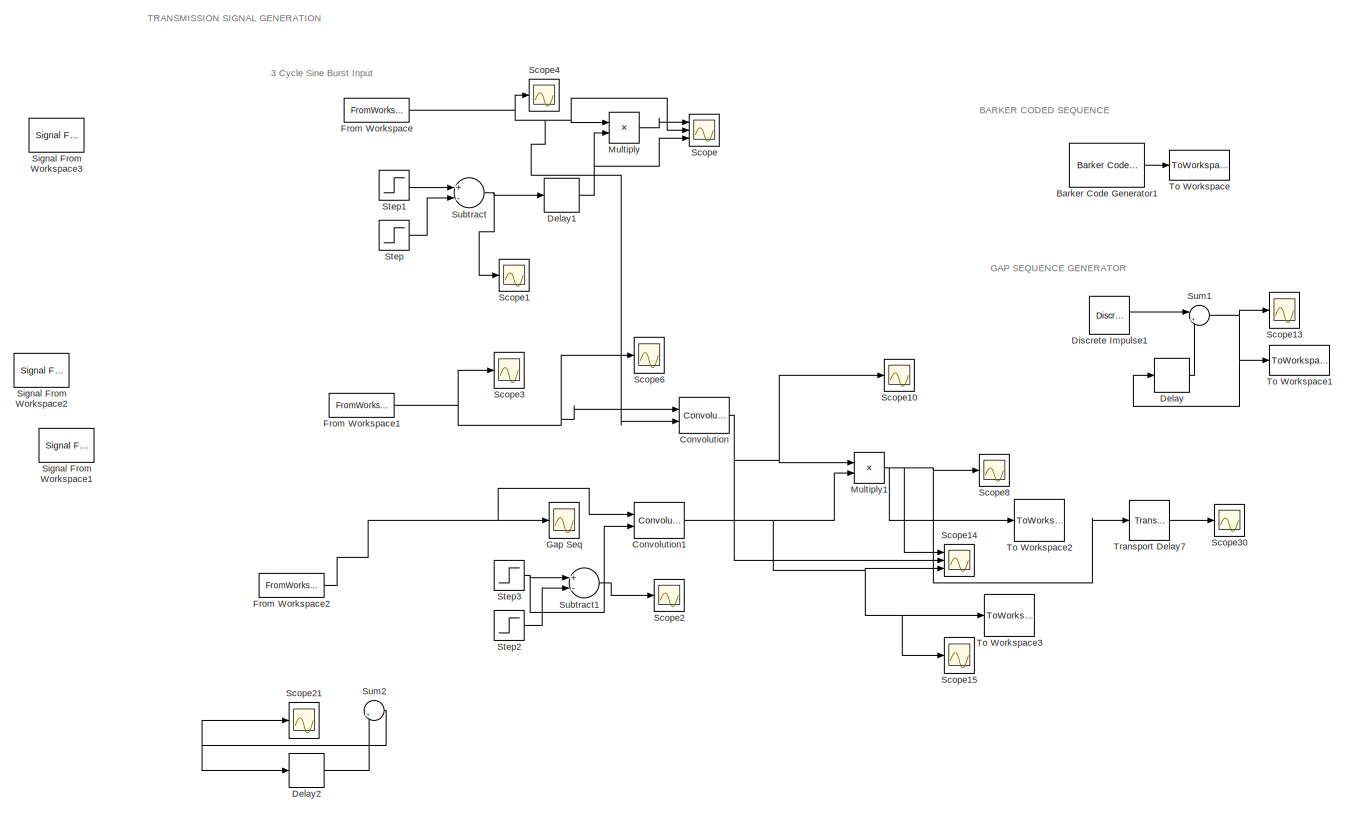
[diagram: root canvas - part 1/6, top left region]
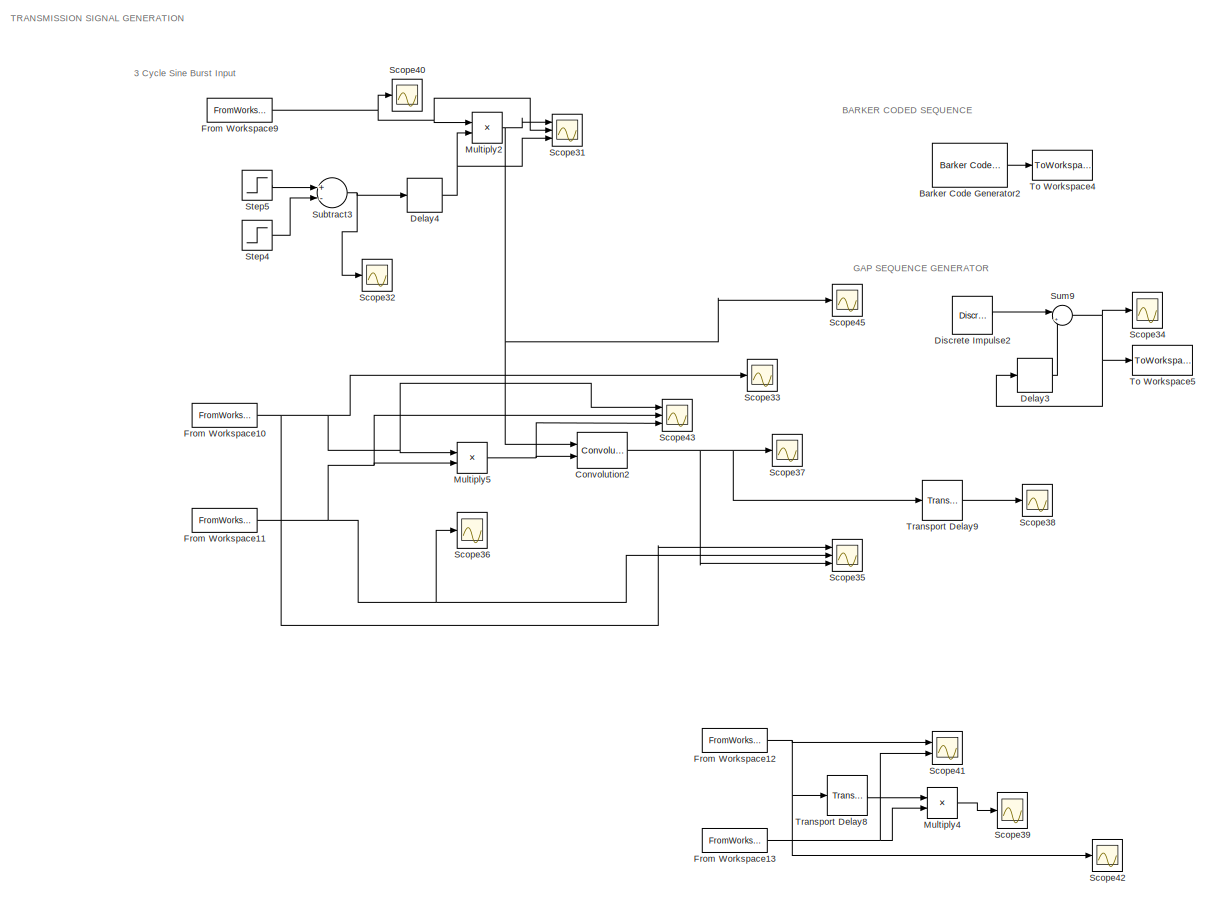
[diagram: root canvas - part 2/6, top right region]
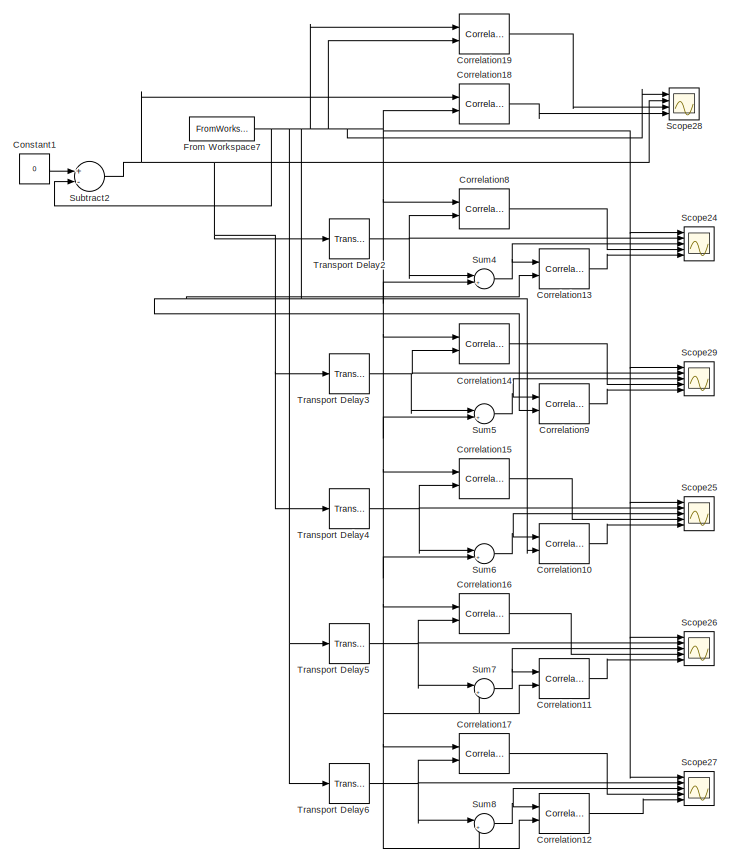
[diagram: root canvas - part 3/6, top center region]
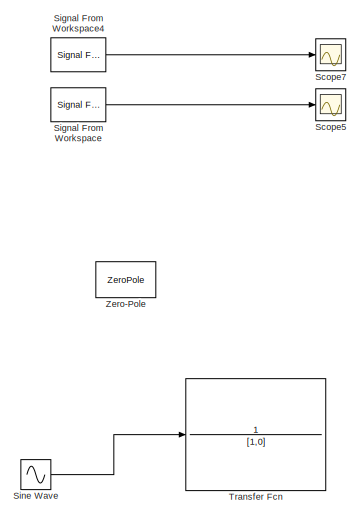
[diagram: root canvas - part 4/6, top center region]
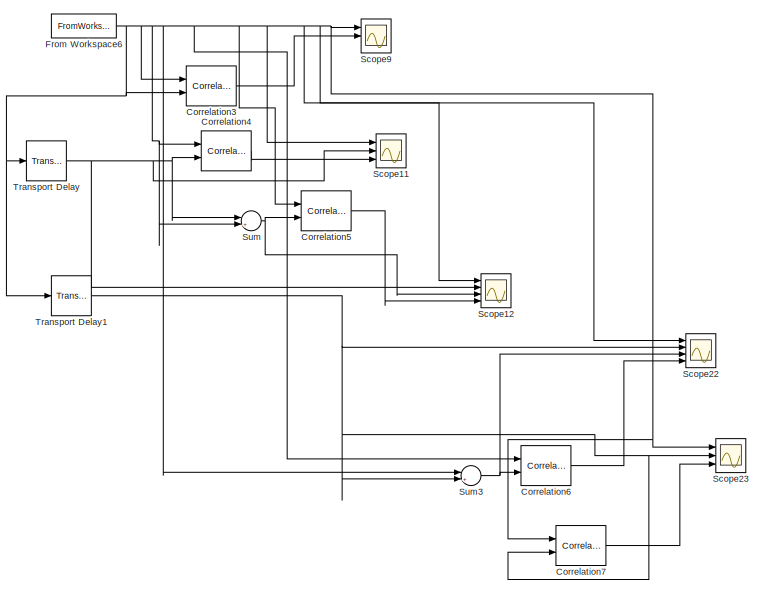
[diagram: root canvas - part 5/6, bottom center region]
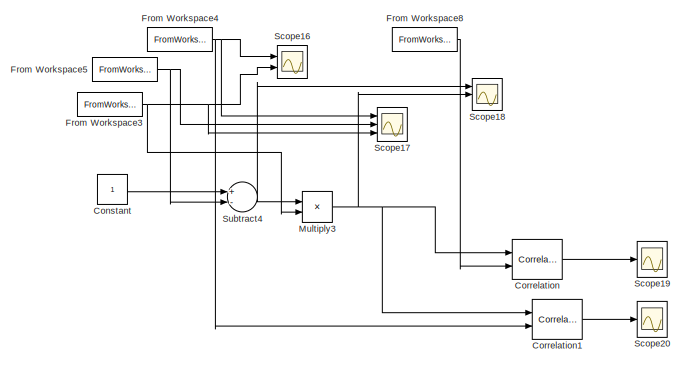
[diagram: root canvas - part 6/6, bottom left region]
MODEL slx_ae267db94207
KIND model
CONFIG AbsTol = auto
CONFIG EnableMultiTasking = off
CONFIG FixedStep = auto
CONFIG MaxStep = auto
CONFIG MinStep = auto
CONFIG RelTol = 1e-3
CONFIG SampleTimeConstraint = Unconstrained
CONFIG Solver = VariableStepAuto
CONFIG SolverName = VariableStepAuto
CONFIG StartTime = 0.0
CONFIG StopFcn = Signal_Logs;\n
CONFIG StopTime = 6*10^-3
BLOCK [Reference] Barker Code Generator1  REF=commseqgen3/Barker Code
Generator
  Commented = on
  Ports = [0, 1]
  SourceBlock = commseqgen3/Barker Code\nGenerator
  SourceProductBaseCode = CM
  SourceProductName = Communications System Toolbox
  SourceType = Barker Code Generator
BLOCK [Reference] Barker Code Generator2  REF=commseqgen3/Barker Code
Generator
  Commented = on
  Ports = [0, 1]
  SourceBlock = commseqgen3/Barker Code\nGenerator
  SourceProductBaseCode = CM
  SourceProductName = Communications System Toolbox
  SourceType = Barker Code Generator
BLOCK [Constant] Constant
  Commented = on
BLOCK [Constant] Constant1
  Commented = on
  Value = 0
BLOCK [Reference] Convolution  REF=dspsigops/Convolution
  Commented = on
  Ports = [2, 1]
  SourceBlock = dspsigops/Convolution
  SourceProductBaseCode = DS
  SourceProductName = DSP System Toolbox
  SourceType = Convolution
BLOCK [Reference] Convolution1  REF=dspsigops/Convolution
  Commented = on
  Ports = [2, 1]
  SourceBlock = dspsigops/Convolution
  SourceProductBaseCode = DS
  SourceProductName = DSP System Toolbox
  SourceType = Convolution
BLOCK [Reference] Convolution2  REF=dspsigops/Convolution
  Commented = on
  Ports = [2, 1]
  SourceBlock = dspsigops/Convolution
  SourceProductBaseCode = DS
  SourceProductName = DSP System Toolbox
  SourceType = Convolution
BLOCK [Reference] Correlation  REF=dspstat3/Correlation
  Commented = on
  Ports = [2, 1]
  SourceBlock = dspstat3/Correlation
  SourceProductBaseCode = DS
  SourceProductName = DSP System Toolbox
  SourceType = Correlation
BLOCK [Reference] Correlation1  REF=dspstat3/Correlation
  Commented = on
  Ports = [2, 1]
  SourceBlock = dspstat3/Correlation
  SourceProductBaseCode = DS
  SourceProductName = DSP System Toolbox
  SourceType = Correlation
BLOCK [Reference] Correlation10  REF=dspstat3/Correlation
  Commented = on
  Ports = [2, 1]
  SourceBlock = dspstat3/Correlation
  SourceProductBaseCode = DS
  SourceProductName = DSP System Toolbox
  SourceType = Correlation
BLOCK [Reference] Correlation11  REF=dspstat3/Correlation
  Commented = on
  Ports = [2, 1]
  SourceBlock = dspstat3/Correlation
  SourceProductBaseCode = DS
  SourceProductName = DSP System Toolbox
  SourceType = Correlation
BLOCK [Reference] Correlation12  REF=dspstat3/Correlation
  Commented = on
  Ports = [2, 1]
  SourceBlock = dspstat3/Correlation
  SourceProductBaseCode = DS
  SourceProductName = DSP System Toolbox
  SourceType = Correlation
BLOCK [Reference] Correlation13  REF=dspstat3/Correlation
  Commented = on
  Ports = [2, 1]
  SourceBlock = dspstat3/Correlation
  SourceProductBaseCode = DS
  SourceProductName = DSP System Toolbox
  SourceType = Correlation
BLOCK [Reference] Correlation14  REF=dspstat3/Correlation
  Commented = on
  Ports = [2, 1]
  SourceBlock = dspstat3/Correlation
  SourceProductBaseCode = DS
  SourceProductName = DSP System Toolbox
  SourceType = Correlation
BLOCK [Reference] Correlation15  REF=dspstat3/Correlation
  Commented = on
  Ports = [2, 1]
  SourceBlock = dspstat3/Correlation
  SourceProductBaseCode = DS
  SourceProductName = DSP System Toolbox
  SourceType = Correlation
BLOCK [Reference] Correlation16  REF=dspstat3/Correlation
  Commented = on
  Ports = [2, 1]
  SourceBlock = dspstat3/Correlation
  SourceProductBaseCode = DS
  SourceProductName = DSP System Toolbox
  SourceType = Correlation
BLOCK [Reference] Correlation17  REF=dspstat3/Correlation
  Commented = on
  Ports = [2, 1]
  SourceBlock = dspstat3/Correlation
  SourceProductBaseCode = DS
  SourceProductName = DSP System Toolbox
  SourceType = Correlation
BLOCK [Reference] Correlation18  REF=dspstat3/Correlation
  Commented = on
  Ports = [2, 1]
  SourceBlock = dspstat3/Correlation
  SourceProductBaseCode = DS
  SourceProductName = DSP System Toolbox
  SourceType = Correlation
BLOCK [Reference] Correlation19  REF=dspstat3/Correlation
  Commented = on
  Ports = [2, 1]
  SourceBlock = dspstat3/Correlation
  SourceProductBaseCode = DS
  SourceProductName = DSP System Toolbox
  SourceType = Correlation
BLOCK [Reference] Correlation3  REF=dspstat3/Correlation
  Commented = on
  Ports = [2, 1]
  SourceBlock = dspstat3/Correlation
  SourceProductBaseCode = DS
  SourceProductName = DSP System Toolbox
  SourceType = Correlation
BLOCK [Reference] Correlation4  REF=dspstat3/Correlation
  Commented = on
  Ports = [2, 1]
  SourceBlock = dspstat3/Correlation
  SourceProductBaseCode = DS
  SourceProductName = DSP System Toolbox
  SourceType = Correlation
BLOCK [Reference] Correlation5  REF=dspstat3/Correlation
  Commented = on
  Ports = [2, 1]
  SourceBlock = dspstat3/Correlation
  SourceProductBaseCode = DS
  SourceProductName = DSP System Toolbox
  SourceType = Correlation
BLOCK [Reference] Correlation6  REF=dspstat3/Correlation
  Commented = on
  Ports = [2, 1]
  SourceBlock = dspstat3/Correlation
  SourceProductBaseCode = DS
  SourceProductName = DSP System Toolbox
  SourceType = Correlation
BLOCK [Reference] Correlation7  REF=dspstat3/Correlation
  Commented = on
  Ports = [2, 1]
  SourceBlock = dspstat3/Correlation
  SourceProductBaseCode = DS
  SourceProductName = DSP System Toolbox
  SourceType = Correlation
BLOCK [Reference] Correlation8  REF=dspstat3/Correlation
  Commented = on
  Ports = [2, 1]
  SourceBlock = dspstat3/Correlation
  SourceProductBaseCode = DS
  SourceProductName = DSP System Toolbox
  SourceType = Correlation
BLOCK [Reference] Correlation9  REF=dspstat3/Correlation
  Commented = on
  Ports = [2, 1]
  SourceBlock = dspstat3/Correlation
  SourceProductBaseCode = DS
  SourceProductName = DSP System Toolbox
  SourceType = Correlation
BLOCK [Delay] Delay
  Commented = on
  InputPortMap = u0
  Ports = [1, 1]
BLOCK [Delay] Delay1
  Commented = on
  DelayLength = 0
  InputPortMap = u0
  Ports = [1, 1]
BLOCK [Delay] Delay2
  Commented = on
  DelayLength = 6
  InputPortMap = u0
  Ports = [1, 1]
BLOCK [Delay] Delay3
  Commented = on
  InputPortMap = u0
  Ports = [1, 1]
BLOCK [Delay] Delay4
  Commented = on
  DelayLength = 0
  InputPortMap = u0
  Ports = [1, 1]
BLOCK [Reference] Discrete Impulse1  REF=dspsrcs4/Discrete 
Impulse
  Commented = on
  Ports = [0, 1]
  SourceBlock = dspsrcs4/Discrete \nImpulse
  SourceProductBaseCode = DS
  SourceProductName = DSP System Toolbox
  SourceType = Discrete Impulse
BLOCK [Reference] Discrete Impulse2  REF=dspsrcs4/Discrete 
Impulse
  Commented = on
  Ports = [0, 1]
  SourceBlock = dspsrcs4/Discrete \nImpulse
  SourceProductBaseCode = DS
  SourceProductName = DSP System Toolbox
  SourceType = Discrete Impulse
BLOCK [FromWorkspace] From Workspace
  Commented = on
  OutDataTypeStr = double
  OutputAfterFinalValue = Setting to zero
  SampleTime = 0.00000001
  VariableName = generateHann(5,2*10^6,6*10^-3,100)
  ZeroCross = on
BLOCK [FromWorkspace] From Workspace1
  Commented = on
  Interpolate = off
  OutDataTypeStr = double
  OutputAfterFinalValue = Setting to zero
  SampleTime = 0.00000001
  VariableName = generateRandomCodedSequence(2400,6*10^-3)
  ZeroCross = on
BLOCK [FromWorkspace] From Workspace10
  Commented = on
  Interpolate = off
  OutDataTypeStr = double
  OutputAfterFinalValue = Setting to zero
  SampleTime = 0.00000001
  VariableName = generateRandomCodedSequence(2400,6*10^-3,250)
  ZeroCross = on
BLOCK [FromWorkspace] From Workspace11
  Commented = on
  Interpolate = off
  OutDataTypeStr = double
  OutputAfterFinalValue = Setting to zero
  SampleTime = 0.00000001
  VariableName = generateRandomGapSequence(2400,6*10^-3,250)
  ZeroCross = on
BLOCK [FromWorkspace] From Workspace12
  SampleTime = 0.00000001
  VariableName = signal
  ZeroCross = on
BLOCK [FromWorkspace] From Workspace13
  SampleTime = 0.00000001
  VariableName = inv_gap
  ZeroCross = on
BLOCK [FromWorkspace] From Workspace2
  Commented = on
  Interpolate = off
  OutDataTypeStr = double
  OutputAfterFinalValue = Setting to zero
  SampleTime = 0.00000001
  VariableName = generateRandomGapSequence(2400,6*10^-3)
  ZeroCross = on
BLOCK [FromWorkspace] From Workspace3
  Commented = on
  Interpolate = off
  OutputAfterFinalValue = Setting to zero
  SampleTime = 0.00000001
  VariableName = pp_output
  ZeroCross = on
BLOCK [FromWorkspace] From Workspace4
  Commented = on
  Interpolate = off
  OutputAfterFinalValue = Setting to zero
  SampleTime = 0.00000001
  VariableName = pp_input
  ZeroCross = on
BLOCK [FromWorkspace] From Workspace5
  Commented = on
  Interpolate = off
  OutputAfterFinalValue = Setting to zero
  SampleTime = 0.00000001
  VariableName = pp_gap
  ZeroCross = on
BLOCK [FromWorkspace] From Workspace6
  Commented = on
  OutDataTypeStr = double
  OutputAfterFinalValue = Setting to zero
  SampleTime = 0.00001
  VariableName = generateHann(5,1,5,100)
  ZeroCross = on
BLOCK [FromWorkspace] From Workspace7
  Commented = on
  OutDataTypeStr = double
  OutputAfterFinalValue = Setting to zero
  SampleTime = 0.00001
  VariableName = generateHann(3,0.5,3,100);
  ZeroCross = on
BLOCK [FromWorkspace] From Workspace8
  Commented = on
  OutDataTypeStr = double
  OutputAfterFinalValue = Setting to zero
  SampleTime = 0.00000001
  VariableName = generateHann(5,2*10^6,6*10^-3,100)
  ZeroCross = on
BLOCK [FromWorkspace] From Workspace9
  Commented = on
  OutDataTypeStr = double
  OutputAfterFinalValue = Setting to zero
  SampleTime = 0.00000001
  VariableName = generateHann(5,2*10^6,6*10^-3,100)
  ZeroCross = on
BLOCK [Scope] Gap Seq 
  Commented = on
  Floating = off
  NumInputPorts = 1
  Ports = [1]
  ScopeSpecificationString = Simulink.scopes.TimeScopeBlockCfg('CurrentConfiguration', extmgr.ConfigurationSet(extmgr.Configuration('Core','General UI',true,'DisplayFullSourceName',true),extmgr.Configuration('Core','Source UI',true),extmgr.Configuration('Sources','WiredSimulink',true,'DataLoggingSaveFormat','Array','DataLoggingDecimation','1','DataLoggingMaxPoints','100000','DataLoggingVariableName','ScopeData1'),extmgr.Confi...<+1936ch>
BLOCK [Product] Multiply
  Commented = on
  InputSameDT = off
  OutDataTypeStr = Inherit: Inherit via internal rule
  Ports = [2, 1]
  RndMeth = Floor
  SaturateOnIntegerOverflow = off
BLOCK [Product] Multiply1
  Commented = on
  InputSameDT = off
  OutDataTypeStr = Inherit: Inherit via internal rule
  Ports = [2, 1]
  RndMeth = Floor
  SaturateOnIntegerOverflow = off
BLOCK [Product] Multiply2
  Commented = on
  InputSameDT = off
  OutDataTypeStr = Inherit: Inherit via internal rule
  Ports = [2, 1]
  RndMeth = Floor
  SaturateOnIntegerOverflow = off
BLOCK [Product] Multiply3
  Commented = on
  InputSameDT = off
  OutDataTypeStr = Inherit: Inherit via internal rule
  Ports = [2, 1]
  RndMeth = Floor
  SaturateOnIntegerOverflow = off
BLOCK [Product] Multiply4
  InputSameDT = off
  OutDataTypeStr = Inherit: Inherit via internal rule
  Ports = [2, 1]
  RndMeth = Floor
  SaturateOnIntegerOverflow = off
BLOCK [Product] Multiply5
  Commented = on
  InputSameDT = off
  OutDataTypeStr = Inherit: Inherit via internal rule
  Ports = [2, 1]
  RndMeth = Floor
  SaturateOnIntegerOverflow = off
BLOCK [Scope] Scope
  Commented = on
  Floating = off
  NumInputPorts = 3
  Ports = [3]
  ScopeSpecificationString = Simulink.scopes.TimeScopeBlockCfg('CurrentConfiguration', extmgr.ConfigurationSet(extmgr.Configuration('Core','General UI',true),extmgr.Configuration('Core','Source UI',true),extmgr.Configuration('Sources','WiredSimulink',true,'DataLoggingVariableName','ScopeData2'),extmgr.Configuration('Visuals','Time Domain',true,'SerializedDisplays',{struct('MinYLimReal','-1.14084','MaxYLimReal','1.22364','YLab...<+2838ch>
BLOCK [Scope] Scope1
  Commented = on
  Floating = off
  NumInputPorts = 1
  Ports = [1]
  ScopeSpecificationString = Simulink.scopes.TimeScopeBlockCfg('CurrentConfiguration', extmgr.ConfigurationSet(extmgr.Configuration('Core','General UI',true),extmgr.Configuration('Core','Source UI',true),extmgr.Configuration('Sources','WiredSimulink',true,'DataLoggingVariableName','ScopeData3'),extmgr.Configuration('Visuals','Time Domain',true,'SerializedDisplays',{struct('MinYLimReal','-0.125','MaxYLimReal','1.125','YLabelRe...<+1384ch>
BLOCK [Scope] Scope10
  Commented = on
  Floating = off
  NumInputPorts = 1
  Ports = [1]
  ScopeSpecificationString = Simulink.scopes.TimeScopeBlockCfg('CurrentConfiguration', extmgr.ConfigurationSet(extmgr.Configuration('Core','General UI',true),extmgr.Configuration('Core','Source UI',true),extmgr.Configuration('Sources','WiredSimulink',true,'DataLoggingVariableName','Code_Log','DataLogging',true,'DataLoggingSaveFormat','StructureWithTime'),extmgr.Configuration('Visuals','Time Domain',true,'SerializedDisplays',{...<+1529ch>
BLOCK [Scope] Scope11
  Commented = on
  Floating = off
  NumInputPorts = 3
  Ports = [3]
  ScopeSpecificationString = Simulink.scopes.TimeScopeBlockCfg('CurrentConfiguration', extmgr.ConfigurationSet(extmgr.Configuration('Core','General UI',true),extmgr.Configuration('Core','Source UI',true),extmgr.Configuration('Sources','WiredSimulink',true,'DataLoggingVariableName','ScopeData7'),extmgr.Configuration('Visuals','Time Domain',true,'SerializedDisplays',{struct('MinYLimReal','-1.14096','MaxYLimReal','1.22365','YLab...<+2766ch>
BLOCK [Scope] Scope12
  Commented = on
  Floating = off
  NumInputPorts = 4
  Ports = [4]
  ScopeSpecificationString = Simulink.scopes.TimeScopeBlockCfg('CurrentConfiguration', extmgr.ConfigurationSet(extmgr.Configuration('Core','General UI',true),extmgr.Configuration('Core','Source UI',true),extmgr.Configuration('Sources','WiredSimulink',true,'DataLoggingVariableName','ScopeData8'),extmgr.Configuration('Visuals','Time Domain',true,'SerializedDisplays',{struct('MinYLimReal','-1.14096','MaxYLimReal','1.22365','YLab...<+3475ch>
BLOCK [Scope] Scope13
  Commented = on
  Floating = off
  NumInputPorts = 1
  Ports = [1]
  ScopeSpecificationString = Simulink.scopes.TimeScopeBlockCfg('CurrentConfiguration', extmgr.ConfigurationSet(extmgr.Configuration('Core','General UI',true,'DisplayFullSourceName',true),extmgr.Configuration('Core','Source UI',true),extmgr.Configuration('Sources','WiredSimulink',true,'DataLoggingSaveFormat','Array','DataLoggingDecimation','1','DataLoggingMaxPoints','100000','DataLoggingVariableName','ScopeData5'),extmgr.Confi...<+1923ch>
BLOCK [Scope] Scope14
  Commented = on
  Floating = off
  NumInputPorts = 3
  Ports = [3]
  ScopeSpecificationString = Simulink.scopes.TimeScopeBlockCfg('CurrentConfiguration', extmgr.ConfigurationSet(extmgr.Configuration('Core','General UI',true),extmgr.Configuration('Core','Source UI',true),extmgr.Configuration('Sources','WiredSimulink',true,'DataLoggingVariableName','ScopeData6'),extmgr.Configuration('Visuals','Time Domain',true,'SerializedDisplays',{struct('MinYLimReal','-1.23399','MaxYLimReal','1.23399','YLab...<+2950ch>
BLOCK [Scope] Scope15
  Commented = on
  Floating = off
  NumInputPorts = 1
  Ports = [1]
  ScopeSpecificationString = Simulink.scopes.TimeScopeBlockCfg('CurrentConfiguration', extmgr.ConfigurationSet(extmgr.Configuration('Core','General UI',true,'DisplayFullSourceName',true),extmgr.Configuration('Core','Source UI',true),extmgr.Configuration('Sources','WiredSimulink',true,'DataLoggingSaveFormat','StructureWithTime','DataLoggingDecimation','1','DataLoggingMaxPoints','100000','DataLoggingVariableName','Gap_Log','Dat...<+1857ch>
BLOCK [Scope] Scope16
  Commented = on
  Floating = off
  NumInputPorts = 2
  Ports = [2]
  ScopeSpecificationString = Simulink.scopes.TimeScopeBlockCfg('CurrentConfiguration', extmgr.ConfigurationSet(extmgr.Configuration('Core','General UI',true),extmgr.Configuration('Core','Source UI',true),extmgr.Configuration('Sources','WiredSimulink',true,'DataLoggingVariableName','ScopeData1'),extmgr.Configuration('Visuals','Time Domain',true,'SerializedDisplays',{struct('MinYLimReal','-1.23399','MaxYLimReal','1.23399','YLab...<+2141ch>
BLOCK [Scope] Scope17
  Commented = on
  Floating = off
  NumInputPorts = 3
  Ports = [3]
  ScopeSpecificationString = Simulink.scopes.TimeScopeBlockCfg('CurrentConfiguration', extmgr.ConfigurationSet(extmgr.Configuration('Core','General UI',true),extmgr.Configuration('Core','Source UI',true),extmgr.Configuration('Sources','WiredSimulink',true,'DataLoggingVariableName','ScopeData2'),extmgr.Configuration('Visuals','Time Domain',true,'SerializedDisplays',{struct('MinYLimReal','-1.23399','MaxYLimReal','1.23399','YLab...<+2835ch>
BLOCK [Scope] Scope18
  Commented = on
  Floating = off
  NumInputPorts = 3
  Ports = [3]
  ScopeSpecificationString = Simulink.scopes.TimeScopeBlockCfg('CurrentConfiguration', extmgr.ConfigurationSet(extmgr.Configuration('Core','General UI',true),extmgr.Configuration('Core','Source UI',true),extmgr.Configuration('Sources','WiredSimulink',true,'DataLoggingVariableName','ScopeData3'),extmgr.Configuration('Visuals','Time Domain',true,'SerializedDisplays',{struct('MinYLimReal','-0.125','MaxYLimReal','1.125','YLabelRe...<+2132ch>
BLOCK [Scope] Scope19
  Commented = on
  Floating = off
  NumInputPorts = 1
  Ports = [1]
  ScopeSpecificationString = Simulink.scopes.TimeScopeBlockCfg('CurrentConfiguration', extmgr.ConfigurationSet(extmgr.Configuration('Core','General UI',true),extmgr.Configuration('Core','Source UI',true),extmgr.Configuration('Sources','WiredSimulink',true,'DataLoggingVariableName','ScopeData4'),extmgr.Configuration('Visuals','Time Domain',true,'SerializedDisplays',{struct('MinYLimReal','-1.00000','MaxYLimReal','1.00000','YLab...<+1493ch>
BLOCK [Scope] Scope2
  Commented = on
  Floating = off
  NumInputPorts = 1
  Ports = [1]
  ScopeSpecificationString = Simulink.scopes.TimeScopeBlockCfg('CurrentConfiguration', extmgr.ConfigurationSet(extmgr.Configuration('Core','General UI',true),extmgr.Configuration('Core','Source UI',true),extmgr.Configuration('Sources','WiredSimulink',true,'DataLoggingVariableName','ScopeData8'),extmgr.Configuration('Visuals','Time Domain',true,'SerializedDisplays',{struct('MinYLimReal','-0.125','MaxYLimReal','1.125','YLabelRe...<+1551ch>
BLOCK [Scope] Scope20
  Commented = on
  Floating = off
  NumInputPorts = 1
  Ports = [1]
  ScopeSpecificationString = Simulink.scopes.TimeScopeBlockCfg('CurrentConfiguration', extmgr.ConfigurationSet(extmgr.Configuration('Core','General UI',true),extmgr.Configuration('Core','Source UI',true),extmgr.Configuration('Sources','WiredSimulink',true,'DataLoggingVariableName','ScopeData5'),extmgr.Configuration('Visuals','Time Domain',true,'SerializedDisplays',{struct('MinYLimReal','-1.00000','MaxYLimReal','1.00000','YLab...<+1493ch>
BLOCK [Scope] Scope21
  Commented = on
  Floating = off
  NumInputPorts = 1
  Ports = [1]
  ScopeSpecificationString = Simulink.scopes.TimeScopeBlockCfg('CurrentConfiguration', extmgr.ConfigurationSet(extmgr.Configuration('Core','General UI',true,'DisplayFullSourceName',true),extmgr.Configuration('Core','Source UI',true),extmgr.Configuration('Sources','WiredSimulink',true,'DataLoggingSaveFormat','Array','DataLoggingDecimation','1','DataLoggingMaxPoints','100000','DataLoggingVariableName','ScopeData9'),extmgr.Confi...<+1923ch>
BLOCK [Scope] Scope22
  Commented = on
  Floating = off
  NumInputPorts = 4
  Ports = [4]
  ScopeSpecificationString = Simulink.scopes.TimeScopeBlockCfg('CurrentConfiguration', extmgr.ConfigurationSet(extmgr.Configuration('Core','General UI',true),extmgr.Configuration('Core','Source UI',true),extmgr.Configuration('Sources','WiredSimulink',true,'DataLoggingVariableName','ScopeData9'),extmgr.Configuration('Visuals','Time Domain',true,'SerializedDisplays',{struct('MinYLimReal','-1.14096','MaxYLimReal','1.22365','YLab...<+3476ch>
BLOCK [Scope] Scope23
  Commented = on
  Floating = off
  NumInputPorts = 3
  Ports = [3]
  ScopeSpecificationString = Simulink.scopes.TimeScopeBlockCfg('CurrentConfiguration', extmgr.ConfigurationSet(extmgr.Configuration('Core','General UI',true),extmgr.Configuration('Core','Source UI',true),extmgr.Configuration('Sources','WiredSimulink',true,'DataLoggingVariableName','ScopeData10'),extmgr.Configuration('Visuals','Time Domain',true,'SerializedDisplays',{struct('MinYLimReal','-1.14096','MaxYLimReal','1.22365','YLa...<+2795ch>
BLOCK [Scope] Scope24
  Commented = on
  Floating = off
  NumInputPorts = 5
  Ports = [5]
  ScopeSpecificationString = Simulink.scopes.TimeScopeBlockCfg('CurrentConfiguration', extmgr.ConfigurationSet(extmgr.Configuration('Core','General UI',true),extmgr.Configuration('Core','Source UI',true),extmgr.Configuration('Sources','WiredSimulink',true,'DataLoggingVariableName','ScopeData11'),extmgr.Configuration('Visuals','Time Domain',true,'SerializedDisplays',{struct('MinYLimReal','-1.1685','MaxYLimReal','1.1685','YLabe...<+4773ch>
BLOCK [Scope] Scope25
  Commented = on
  Floating = off
  NumInputPorts = 5
  Ports = [5]
  ScopeSpecificationString = Simulink.scopes.TimeScopeBlockCfg('CurrentConfiguration', extmgr.ConfigurationSet(extmgr.Configuration('Core','General UI',true),extmgr.Configuration('Core','Source UI',true),extmgr.Configuration('Sources','WiredSimulink',true,'DataLoggingVariableName','ScopeData12'),extmgr.Configuration('Visuals','Time Domain',true,'SerializedDisplays',{struct('MinYLimReal','-1.1685','MaxYLimReal','1.1685','YLabe...<+4832ch>
BLOCK [Scope] Scope26
  Commented = on
  Floating = off
  NumInputPorts = 5
  Ports = [5]
  ScopeSpecificationString = Simulink.scopes.TimeScopeBlockCfg('CurrentConfiguration', extmgr.ConfigurationSet(extmgr.Configuration('Core','General UI',true),extmgr.Configuration('Core','Source UI',true),extmgr.Configuration('Sources','WiredSimulink',true,'DataLoggingVariableName','ScopeData13'),extmgr.Configuration('Visuals','Time Domain',true,'SerializedDisplays',{struct('MinYLimReal','-1.1685','MaxYLimReal','1.1685','YLabe...<+4771ch>
BLOCK [Scope] Scope27
  Commented = on
  Floating = off
  NumInputPorts = 5
  Ports = [5]
  ScopeSpecificationString = Simulink.scopes.TimeScopeBlockCfg('CurrentConfiguration', extmgr.ConfigurationSet(extmgr.Configuration('Core','General UI',true),extmgr.Configuration('Core','Source UI',true),extmgr.Configuration('Sources','WiredSimulink',true,'DataLoggingVariableName','ScopeData14'),extmgr.Configuration('Visuals','Time Domain',true,'SerializedDisplays',{struct('MinYLimReal','-1.14096','MaxYLimReal','1.22365','YLa...<+4838ch>
BLOCK [Scope] Scope28
  Commented = on
  Floating = off
  NumInputPorts = 4
  Ports = [4]
  ScopeSpecificationString = Simulink.scopes.TimeScopeBlockCfg('CurrentConfiguration', extmgr.ConfigurationSet(extmgr.Configuration('Core','General UI',true),extmgr.Configuration('Core','Source UI',true),extmgr.Configuration('Sources','WiredSimulink',true,'DataLoggingVariableName','ScopeData15'),extmgr.Configuration('Visuals','Time Domain',true,'SerializedDisplays',{struct('MinYLimReal','-1.1685','MaxYLimReal','1.1685','YLabe...<+3364ch>
BLOCK [Scope] Scope29
  Commented = on
  Floating = off
  NumInputPorts = 5
  Ports = [5]
  ScopeSpecificationString = Simulink.scopes.TimeScopeBlockCfg('CurrentConfiguration', extmgr.ConfigurationSet(extmgr.Configuration('Core','General UI',true),extmgr.Configuration('Core','Source UI',true),extmgr.Configuration('Sources','WiredSimulink',true,'DataLoggingVariableName','ScopeData16'),extmgr.Configuration('Visuals','Time Domain',true,'SerializedDisplays',{struct('MinYLimReal','-1.1685','MaxYLimReal','1.1685','YLabe...<+4771ch>
BLOCK [Scope] Scope3
  Commented = on
  Floating = off
  NumInputPorts = 1
  Ports = [1]
  ScopeSpecificationString = Simulink.scopes.TimeScopeBlockCfg('CurrentConfiguration', extmgr.ConfigurationSet(extmgr.Configuration('Core','General UI',true,'DisplayFullSourceName',true),extmgr.Configuration('Core','Source UI',true),extmgr.Configuration('Sources','WiredSimulink',true,'DataLoggingSaveFormat','Array','DataLoggingDecimation','1','DataLoggingMaxPoints','100000','DataLoggingVariableName','ScopeData10'),extmgr.Conf...<+1931ch>
BLOCK [Scope] Scope30
  Commented = on
  Floating = off
  NumInputPorts = 1
  Ports = [1]
  ScopeSpecificationString = Simulink.scopes.TimeScopeBlockCfg('CurrentConfiguration', extmgr.ConfigurationSet(extmgr.Configuration('Core','General UI',true),extmgr.Configuration('Core','Source UI',true),extmgr.Configuration('Sources','WiredSimulink',true,'DataLoggingVariableName','Shifted_Signal_Log','DataLogging',true,'DataLoggingSaveFormat','StructureWithTime'),extmgr.Configuration('Visuals','Time Domain',true,'SerializedD...<+1519ch>
BLOCK [Scope] Scope31
  Commented = on
  Floating = off
  NumInputPorts = 3
  Ports = [3]
  ScopeSpecificationString = Simulink.scopes.TimeScopeBlockCfg('CurrentConfiguration', extmgr.ConfigurationSet(extmgr.Configuration('Core','General UI',true),extmgr.Configuration('Core','Source UI',true),extmgr.Configuration('Sources','WiredSimulink',true,'DataLoggingVariableName','ScopeData2'),extmgr.Configuration('Visuals','Time Domain',true,'SerializedDisplays',{struct('MinYLimReal','-1.14084','MaxYLimReal','1.22364','YLab...<+2840ch>
BLOCK [Scope] Scope32
  Commented = on
  Floating = off
  NumInputPorts = 1
  Ports = [1]
  ScopeSpecificationString = Simulink.scopes.TimeScopeBlockCfg('CurrentConfiguration', extmgr.ConfigurationSet(extmgr.Configuration('Core','General UI',true),extmgr.Configuration('Core','Source UI',true),extmgr.Configuration('Sources','WiredSimulink',true,'DataLoggingVariableName','ScopeData3'),extmgr.Configuration('Visuals','Time Domain',true,'SerializedDisplays',{struct('MinYLimReal','-0.125','MaxYLimReal','1.125','YLabelRe...<+1384ch>
BLOCK [Scope] Scope33
  Commented = on
  Floating = off
  NumInputPorts = 1
  Ports = [1]
  ScopeSpecificationString = Simulink.scopes.TimeScopeBlockCfg('CurrentConfiguration', extmgr.ConfigurationSet(extmgr.Configuration('Core','General UI',true),extmgr.Configuration('Core','Source UI',true),extmgr.Configuration('Sources','WiredSimulink',true,'DataLoggingVariableName','Code_Log','DataLogging',true,'DataLoggingSaveFormat','StructureWithTime'),extmgr.Configuration('Visuals','Time Domain',true,'SerializedDisplays',{...<+1534ch>
BLOCK [Scope] Scope34
  Commented = on
  Floating = off
  NumInputPorts = 1
  Ports = [1]
  ScopeSpecificationString = Simulink.scopes.TimeScopeBlockCfg('CurrentConfiguration', extmgr.ConfigurationSet(extmgr.Configuration('Core','General UI',true,'DisplayFullSourceName',true),extmgr.Configuration('Core','Source UI',true),extmgr.Configuration('Sources','WiredSimulink',true,'DataLoggingSaveFormat','Array','DataLoggingDecimation','1','DataLoggingMaxPoints','100000','DataLoggingVariableName','ScopeData5'),extmgr.Confi...<+1923ch>
BLOCK [Scope] Scope35
  Commented = on
  Floating = off
  NumInputPorts = 3
  Ports = [3]
  ScopeSpecificationString = Simulink.scopes.TimeScopeBlockCfg('CurrentConfiguration', extmgr.ConfigurationSet(extmgr.Configuration('Core','General UI',true),extmgr.Configuration('Core','Source UI',true),extmgr.Configuration('Sources','WiredSimulink',true,'DataLoggingVariableName','ScopeData6'),extmgr.Configuration('Visuals','Time Domain',true,'SerializedDisplays',{struct('MinYLimReal','-1.25','MaxYLimReal','1.25','YLabelReal...<+2958ch>
BLOCK [Scope] Scope36
  Commented = on
  Floating = off
  NumInputPorts = 1
  Ports = [1]
  ScopeSpecificationString = Simulink.scopes.TimeScopeBlockCfg('CurrentConfiguration', extmgr.ConfigurationSet(extmgr.Configuration('Core','General UI',true,'DisplayFullSourceName',true),extmgr.Configuration('Core','Source UI',true),extmgr.Configuration('Sources','WiredSimulink',true,'DataLoggingSaveFormat','StructureWithTime','DataLoggingDecimation','1','DataLoggingMaxPoints','100000','DataLoggingVariableName','Gap_Log','Dat...<+1861ch>
BLOCK [Scope] Scope37
  Commented = on
  Floating = off
  NumInputPorts = 1
  Ports = [1]
  ScopeSpecificationString = Simulink.scopes.TimeScopeBlockCfg('CurrentConfiguration', extmgr.ConfigurationSet(extmgr.Configuration('Core','General UI',true),extmgr.Configuration('Core','Source UI',true),extmgr.Configuration('Sources','WiredSimulink',true,'DataLoggingVariableName','Signal_Log','DataLogging',true,'DataLoggingSaveFormat','StructureWithTime'),extmgr.Configuration('Visuals','Time Domain',true,'SerializedDisplays'...<+1434ch>
BLOCK [Scope] Scope38
  Commented = on
  Floating = off
  NumInputPorts = 1
  Ports = [1]
  ScopeSpecificationString = Simulink.scopes.TimeScopeBlockCfg('CurrentConfiguration', extmgr.ConfigurationSet(extmgr.Configuration('Core','General UI',true),extmgr.Configuration('Core','Source UI',true),extmgr.Configuration('Sources','WiredSimulink',true,'DataLoggingVariableName','Shifted_Signal_Log','DataLogging',true,'DataLoggingSaveFormat','StructureWithTime'),extmgr.Configuration('Visuals','Time Domain',true,'SerializedD...<+1519ch>
BLOCK [Scope] Scope39
  Floating = off
  NumInputPorts = 1
  Ports = [1]
  ScopeSpecificationString = Simulink.scopes.TimeScopeBlockCfg('CurrentConfiguration', extmgr.ConfigurationSet(extmgr.Configuration('Core','General UI',true),extmgr.Configuration('Core','Source UI',true),extmgr.Configuration('Sources','WiredSimulink',true,'DataLoggingVariableName','Shifted_Signal_Log','DataLogging',true,'DataLoggingSaveFormat','StructureWithTime'),extmgr.Configuration('Visuals','Time Domain',true,'SerializedD...<+1562ch>
BLOCK [Scope] Scope4
  Commented = on
  Floating = off
  NumInputPorts = 1
  Ports = [1]
  ScopeSpecificationString = Simulink.scopes.TimeScopeBlockCfg('CurrentConfiguration', extmgr.ConfigurationSet(extmgr.Configuration('Core','General UI',true),extmgr.Configuration('Core','Source UI',true),extmgr.Configuration('Sources','WiredSimulink',true,'DataLoggingVariableName','ScopeData11'),extmgr.Configuration('Visuals','Time Domain',true,'SerializedDisplays',{struct('MinYLimReal','-0.000000000000037','MaxYLimReal','0.0...<+1552ch>
BLOCK [Scope] Scope40
  Commented = on
  Floating = off
  NumInputPorts = 1
  Ports = [1]
  ScopeSpecificationString = Simulink.scopes.TimeScopeBlockCfg('CurrentConfiguration', extmgr.ConfigurationSet(extmgr.Configuration('Core','General UI',true),extmgr.Configuration('Core','Source UI',true),extmgr.Configuration('Sources','WiredSimulink',true,'DataLoggingVariableName','ScopeData10'),extmgr.Configuration('Visuals','Time Domain',true,'SerializedDisplays',{struct('MinYLimReal','-1.14084','MaxYLimReal','1.22364','YLa...<+1473ch>
BLOCK [Scope] Scope41
  Floating = off
  NumInputPorts = 2
  Ports = [2]
  ScopeSpecificationString = Simulink.scopes.TimeScopeBlockCfg('CurrentConfiguration', extmgr.ConfigurationSet(extmgr.Configuration('Core','General UI',true),extmgr.Configuration('Core','Source UI',true),extmgr.Configuration('Sources','WiredSimulink',true,'DataLoggingVariableName','ScopeData2'),extmgr.Configuration('Visuals','Time Domain',true,'SerializedDisplays',{struct('MinYLimReal','-1.23399','MaxYLimReal','1.23399','YLab...<+2151ch>
BLOCK [Scope] Scope42
  Floating = off
  NumInputPorts = 1
  Ports = [1]
  ScopeSpecificationString = Simulink.scopes.TimeScopeBlockCfg('CurrentConfiguration', extmgr.ConfigurationSet(extmgr.Configuration('Core','General UI',true),extmgr.Configuration('Core','Source UI',true),extmgr.Configuration('Sources','WiredSimulink',true,'DataLoggingVariableName','Signal_Log','DataLogging',true,'DataLoggingSaveFormat','StructureWithTime'),extmgr.Configuration('Visuals','Time Domain',true,'SerializedDisplays'...<+1438ch>
BLOCK [Scope] Scope43
  Commented = on
  Floating = off
  NumInputPorts = 3
  Ports = [3]
  ScopeSpecificationString = Simulink.scopes.TimeScopeBlockCfg('CurrentConfiguration', extmgr.ConfigurationSet(extmgr.Configuration('Core','General UI',true),extmgr.Configuration('Core','Source UI',true),extmgr.Configuration('Sources','WiredSimulink',true,'DataLoggingVariableName','ScopeData1'),extmgr.Configuration('Visuals','Time Domain',true,'SerializedDisplays',{struct('MinYLimReal','-1.25','MaxYLimReal','1.25','YLabelReal...<+2783ch>
BLOCK [Scope] Scope45
  Commented = on
  Floating = off
  NumInputPorts = 1
  Ports = [1]
  ScopeSpecificationString = Simulink.scopes.TimeScopeBlockCfg('CurrentConfiguration', extmgr.ConfigurationSet(extmgr.Configuration('Core','General UI',true),extmgr.Configuration('Core','Source UI',true),extmgr.Configuration('Sources','WiredSimulink',true,'DataLoggingVariableName','Burst_Log','DataLogging',true,'DataLoggingSaveFormat','StructureWithTime'),extmgr.Configuration('Visuals','Time Domain',true,'SerializedDisplays',...<+1430ch>
BLOCK [Scope] Scope5
  Commented = on
  Floating = off
  NumInputPorts = 1
  Ports = [1]
  ScopeSpecificationString = Simulink.scopes.TimeScopeBlockCfg('CurrentConfiguration', extmgr.ConfigurationSet(extmgr.Configuration('Core','General UI',true),extmgr.Configuration('Core','Source UI',true),extmgr.Configuration('Sources','WiredSimulink',true,'DataLoggingVariableName','ScopeData1'),extmgr.Configuration('Visuals','Time Domain',true,'SerializedDisplays',{struct('MinYLimReal','-0.25','MaxYLimReal','2.25','YLabelReal...<+1380ch>
BLOCK [Scope] Scope6
  Commented = on
  Floating = off
  NumInputPorts = 1
  Ports = [1]
  ScopeSpecificationString = Simulink.scopes.TimeScopeBlockCfg('CurrentConfiguration', extmgr.ConfigurationSet(extmgr.Configuration('Core','General UI',true,'DisplayFullSourceName',true),extmgr.Configuration('Core','Source UI',true),extmgr.Configuration('Sources','WiredSimulink',true,'DataLoggingSaveFormat','Array','DataLoggingDecimation','1','DataLoggingMaxPoints','100000'),extmgr.Configuration('Visuals','Time Domain',true,'...<+1899ch>
BLOCK [Scope] Scope7
  Commented = on
  Floating = off
  NumInputPorts = 1
  Ports = [1]
  ScopeSpecificationString = Simulink.scopes.TimeScopeBlockCfg('CurrentConfiguration', extmgr.ConfigurationSet(extmgr.Configuration('Core','General UI',true),extmgr.Configuration('Core','Source UI',true),extmgr.Configuration('Sources','WiredSimulink',true,'DataLoggingVariableName','ScopeData2'),extmgr.Configuration('Visuals','Time Domain',true),extmgr.Configuration('Tools','Plot Navigation',true),extmgr.Configuration('Tools',...<+40ch>
BLOCK [Scope] Scope8
  Commented = on
  Floating = off
  NumInputPorts = 1
  Ports = [1]
  ScopeSpecificationString = Simulink.scopes.TimeScopeBlockCfg('CurrentConfiguration', extmgr.ConfigurationSet(extmgr.Configuration('Core','General UI',true),extmgr.Configuration('Core','Source UI',true),extmgr.Configuration('Sources','WiredSimulink',true,'DataLoggingVariableName','Signal_Log','DataLogging',true,'DataLoggingSaveFormat','StructureWithTime'),extmgr.Configuration('Visuals','Time Domain',true,'SerializedDisplays'...<+1498ch>
BLOCK [Scope] Scope9
  Commented = on
  Floating = off
  NumInputPorts = 3
  Ports = [3]
  ScopeSpecificationString = Simulink.scopes.TimeScopeBlockCfg('CurrentConfiguration', extmgr.ConfigurationSet(extmgr.Configuration('Core','General UI',true),extmgr.Configuration('Core','Source UI',true),extmgr.Configuration('Sources','WiredSimulink',true,'DataLoggingVariableName','ScopeData6'),extmgr.Configuration('Visuals','Time Domain',true,'SerializedDisplays',{struct('MinYLimReal','-1.14096','MaxYLimReal','1.22365','YLab...<+2108ch>
BLOCK [Reference] Signal From Workspace  REF=dspsrcs4/Signal From
Workspace
  Commented = on
  Ports = [0, 1]
  SourceBlock = dspsrcs4/Signal From\nWorkspace
  SourceProductBaseCode = DS
  SourceProductName = DSP System Toolbox
  SourceType = Signal From Workspace
BLOCK [Reference] Signal From Workspace1  REF=dspsrcs4/Signal From
Workspace
  Commented = on
  Ports = [0, 1]
  SourceBlock = dspsrcs4/Signal From\nWorkspace
  SourceProductBaseCode = DS
  SourceProductName = DSP System Toolbox
  SourceType = Signal From Workspace
BLOCK [Reference] Signal From Workspace2  REF=dspsrcs4/Signal From
Workspace
  Commented = on
  Ports = [0, 1]
  SourceBlock = dspsrcs4/Signal From\nWorkspace
  SourceProductBaseCode = DS
  SourceProductName = DSP System Toolbox
  SourceType = Signal From Workspace
BLOCK [Reference] Signal From Workspace3  REF=dspsrcs4/Signal From
Workspace
  Commented = on
  Ports = [0, 1]
  SourceBlock = dspsrcs4/Signal From\nWorkspace
  SourceProductBaseCode = DS
  SourceProductName = DSP System Toolbox
  SourceType = Signal From Workspace
BLOCK [Reference] Signal From Workspace4  REF=dspsrcs4/Signal From
Workspace
  Commented = on
  Ports = [0, 1]
  SourceBlock = dspsrcs4/Signal From\nWorkspace
  SourceProductBaseCode = DS
  SourceProductName = DSP System Toolbox
  SourceType = Signal From Workspace
BLOCK [Sin] Sine Wave
  Commented = on
  Ports = [0, 1]
  SampleTime = 0
BLOCK [Step] Step
  Commented = on
  Time = 7%/5*10^4
BLOCK [Step] Step1
  Commented = on
  Time = 0
BLOCK [Step] Step2
  Commented = on
  Time = 7%/5*10^4
  VectorParams1D = off
BLOCK [Step] Step3
  Commented = on
  Time = 0
  VectorParams1D = off
BLOCK [Step] Step4
  Commented = on
  Time = 2.5*10^-6
BLOCK [Step] Step5
  Commented = on
  Time = 0
BLOCK [Sum] Subtract
  Commented = on
  InputSameDT = off
  Inputs = +-
  OutDataTypeStr = Inherit: Inherit via internal rule
  Ports = [2, 1]
  SaturateOnIntegerOverflow = off
BLOCK [Sum] Subtract1
  Commented = on
  InputSameDT = off
  Inputs = +-
  OutDataTypeStr = Inherit: Inherit via internal rule
  Ports = [2, 1]
  SaturateOnIntegerOverflow = off
BLOCK [Sum] Subtract2
  Commented = on
  InputSameDT = off
  Inputs = +-
  OutDataTypeStr = Inherit: Inherit via internal rule
  Ports = [2, 1]
  SaturateOnIntegerOverflow = off
BLOCK [Sum] Subtract3
  Commented = on
  InputSameDT = off
  Inputs = +-
  OutDataTypeStr = Inherit: Inherit via internal rule
  Ports = [2, 1]
  SaturateOnIntegerOverflow = off
BLOCK [Sum] Subtract4
  Commented = on
  InputSameDT = off
  Inputs = +-
  OutDataTypeStr = Inherit: Inherit via internal rule
  Ports = [2, 1]
  SaturateOnIntegerOverflow = off
BLOCK [Sum] Sum
  Commented = on
  IconShape = round
  InputSameDT = off
  Inputs = |++
  OutDataTypeStr = Inherit: Inherit via internal rule
  Ports = [2, 1]
  SaturateOnIntegerOverflow = off
BLOCK [Sum] Sum1
  Commented = on
  IconShape = round
  InputSameDT = off
  Inputs = |++
  OutDataTypeStr = Inherit: Inherit via internal rule
  Ports = [2, 1]
  SaturateOnIntegerOverflow = off
BLOCK [Sum] Sum2
  Commented = on
  IconShape = round
  InputSameDT = off
  Inputs = |++
  OutDataTypeStr = Inherit: Inherit via internal rule
  Ports = [2, 1]
  SaturateOnIntegerOverflow = off
BLOCK [Sum] Sum3
  Commented = on
  IconShape = round
  InputSameDT = off
  Inputs = |++
  OutDataTypeStr = Inherit: Inherit via internal rule
  Ports = [2, 1]
  SaturateOnIntegerOverflow = off
BLOCK [Sum] Sum4
  Commented = on
  IconShape = round
  InputSameDT = off
  Inputs = |++
  OutDataTypeStr = Inherit: Inherit via internal rule
  Ports = [2, 1]
  SaturateOnIntegerOverflow = off
BLOCK [Sum] Sum5
  Commented = on
  IconShape = round
  InputSameDT = off
  Inputs = |++
  OutDataTypeStr = Inherit: Inherit via internal rule
  Ports = [2, 1]
  SaturateOnIntegerOverflow = off
BLOCK [Sum] Sum6
  Commented = on
  IconShape = round
  InputSameDT = off
  Inputs = |++
  OutDataTypeStr = Inherit: Inherit via internal rule
  Ports = [2, 1]
  SaturateOnIntegerOverflow = off
BLOCK [Sum] Sum7
  Commented = on
  IconShape = round
  InputSameDT = off
  Inputs = |++
  OutDataTypeStr = Inherit: Inherit via internal rule
  Ports = [2, 1]
  SaturateOnIntegerOverflow = off
BLOCK [Sum] Sum8
  Commented = on
  IconShape = round
  InputSameDT = off
  Inputs = |++
  OutDataTypeStr = Inherit: Inherit via internal rule
  Ports = [2, 1]
  SaturateOnIntegerOverflow = off
BLOCK [Sum] Sum9
  Commented = on
  IconShape = round
  InputSameDT = off
  Inputs = |++
  OutDataTypeStr = Inherit: Inherit via internal rule
  Ports = [2, 1]
  SaturateOnIntegerOverflow = off
BLOCK [ToWorkspace] To Workspace
  Commented = on
  FixptAsFi = on
  MaxDataPoints = inf
  Ports = [1]
  SampleTime = -1
  Save2DSignal = 2-D array (concatenate along first dimension)
  VariableName = barker
BLOCK [ToWorkspace] To Workspace1
  Commented = on
  FixptAsFi = on
  MaxDataPoints = inf
  Ports = [1]
  SampleTime = -1
  Save2DSignal = 3-D array (concatenate along third dimension)
  VariableName = gap_seq
BLOCK [ToWorkspace] To Workspace2
  Commented = on
  MaxDataPoints = inf
  Ports = [1]
  SampleTime = -1
  Save2DSignal = 2-D array (concatenate along first dimension)
  VariableName = signalfromsimu
BLOCK [ToWorkspace] To Workspace3
  Commented = on
  MaxDataPoints = inf
  Ports = [1]
  SampleTime = -1
  Save2DSignal = 2-D array (concatenate along first dimension)
  VariableName = gapfromsimu
BLOCK [ToWorkspace] To Workspace4
  Commented = on
  FixptAsFi = on
  MaxDataPoints = inf
  Ports = [1]
  SampleTime = -1
  Save2DSignal = 2-D array (concatenate along first dimension)
  VariableName = barker1
BLOCK [ToWorkspace] To Workspace5
  Commented = on
  FixptAsFi = on
  MaxDataPoints = inf
  Ports = [1]
  SampleTime = -1
  Save2DSignal = 3-D array (concatenate along third dimension)
  VariableName = gap_seq1
BLOCK [TransferFcn] Transfer Fcn
  Commented = on
  Denominator = [1,0]
  Numerator = 1
BLOCK [TransportDelay] Transport Delay
  Commented = on
  Ports = [1, 1]
BLOCK [TransportDelay] Transport Delay1
  Commented = on
  DelayTime = 2
  Ports = [1, 1]
BLOCK [TransportDelay] Transport Delay2
  Commented = on
  DelayTime = 0.5
  Ports = [1, 1]
BLOCK [TransportDelay] Transport Delay3
  Commented = on
  DelayTime = 2
  Ports = [1, 1]
BLOCK [TransportDelay] Transport Delay4
  Commented = on
  DelayTime = 3
  Ports = [1, 1]
BLOCK [TransportDelay] Transport Delay5
  Commented = on
  DelayTime = 4
  Ports = [1, 1]
BLOCK [TransportDelay] Transport Delay6
  Commented = on
  DelayTime = 5
  Ports = [1, 1]
BLOCK [TransportDelay] Transport Delay7
  Commented = on
  DelayTime = 10^-4
  Ports = [1, 1]
BLOCK [TransportDelay] Transport Delay8
  DelayTime = 2.5*10^-3
  Ports = [1, 1]
BLOCK [TransportDelay] Transport Delay9
  Commented = on
  DelayTime = 10^-3
  Ports = [1, 1]
BLOCK [ZeroPole] Zero-Pole
  Commented = on
  Poles = [0 -1]
ANNOTATION (root): 3 Cycle Sine Burst Input
ANNOTATION (root): BARKER CODED SEQUENCE
ANNOTATION (root): GAP SEQUENCE GENERATOR
ANNOTATION (root): TRANSMISSION SIGNAL GENERATION
LINE Barker Code Generator1:1 -> To Workspace:1
LINE Barker Code Generator2:1 -> To Workspace4:1
LINE Constant1:1 -> Subtract2:1
LINE Constant:1 -> Subtract4:1
NET Convolution1:1 -> Multiply1:2, Scope14:3, Scope15:1, To Workspace3:1
NET Convolution2:1 -> Scope35:3, Scope37:1, Transport Delay9:1
NET Convolution:1 -> Multiply1:1, Scope10:1, Scope14:2
LINE Correlation10:1 -> Scope25:5
LINE Correlation11:1 -> Scope26:5
LINE Correlation12:1 -> Scope27:5
LINE Correlation13:1 -> Scope24:5
LINE Correlation14:1 -> Scope29:4
LINE Correlation15:1 -> Scope25:4
LINE Correlation16:1 -> Scope26:4
LINE Correlation17:1 -> Scope27:4
LINE Correlation18:1 -> Scope28:4
LINE Correlation19:1 -> Scope28:3
LINE Correlation1:1 -> Scope20:1
LINE Correlation3:1 -> Scope9:2
LINE Correlation4:1 -> Scope11:3
LINE Correlation5:1 -> Scope12:4
LINE Correlation6:1 -> Scope22:4
LINE Correlation7:1 -> Scope23:3
LINE Correlation8:1 -> Scope24:4
LINE Correlation9:1 -> Scope29:5
LINE Correlation:1 -> Scope19:1
NET Delay1:1 -> Multiply:2, Scope:3
LINE Delay2:1 -> Sum2:2
LINE Delay3:1 -> Sum9:2
NET Delay4:1 -> Multiply2:2, Scope31:3
LINE Delay:1 -> Sum1:2
LINE Discrete Impulse1:1 -> Sum1:1
LINE Discrete Impulse2:1 -> Sum9:1
NET From Workspace10:1 -> Multiply5:1, Scope33:1, Scope35:1, Scope43:1
NET From Workspace11:1 -> Multiply5:2, Scope35:2, Scope36:1, Scope43:2
NET From Workspace12:1 -> Scope41:1, Scope42:1, Transport Delay8:1
NET From Workspace13:1 -> Multiply4:2, Scope41:2
NET From Workspace1:1 -> Convolution:1, Scope3:1, Scope6:1
NET From Workspace2:1 -> Convolution1:1, Gap Seq :1
NET From Workspace3:1 -> Multiply3:2, Scope16:2, Scope17:3
NET From Workspace4:1 -> Correlation1:2, Scope16:1, Scope17:1
NET From Workspace5:1 -> Scope17:2, Subtract4:2
NET From Workspace6:1 -> Correlation3:1, Correlation3:2, Correlation4:1, Correlation5:1, Correlation6:1, Correlation7:1, Scope11:1, Scope12:1, Scope22:1, Scope23:1, Scope9:1, Sum3:1, Sum:2, Transport Delay1:1, Transport Delay:1
NET From Workspace7:1 -> Correlation10:2, Correlation11:2, Correlation12:2, Correlation13:2, Correlation14:1, Correlation15:1, Correlation16:1, Correlation17:1, Correlation18:2, Correlation19:1, Correlation19:2, Correlation8:1, Correlation9:2, Scope24:1, Scope25:1, Scope26:1, Scope27:1, Scope28:1, Scope29:1, Subtract2:2, Sum4:2, Sum5:2, Sum6:2, Sum7:2, Sum8:2, Transport Delay5:1, Transport Delay6:1
LINE From Workspace8:1 -> Correlation:2
NET From Workspace9:1 -> Multiply2:1, Scope31:2, Scope40:1
NET From Workspace:1 -> Convolution:2, Multiply:1, Scope4:1, Scope:2
NET Multiply1:1 -> Scope14:1, Scope8:1, To Workspace2:1, Transport Delay7:1
NET Multiply2:1 -> Convolution2:1, Scope31:1, Scope45:1
NET Multiply3:1 -> Correlation1:1, Correlation:1, Scope18:2
LINE Multiply4:1 -> Scope39:1
NET Multiply5:1 -> Convolution2:2, Scope43:3
LINE Multiply:1 -> Scope:1
LINE Signal From Workspace4:1 -> Scope7:1
LINE Signal From Workspace:1 -> Scope5:1
LINE Sine Wave:1 -> Transfer Fcn:1
LINE Step1:1 -> Subtract:1
LINE Step2:1 -> Subtract1:2
NET Step3:1 -> Convolution1:2, Subtract1:1
LINE Step4:1 -> Subtract3:2
LINE Step5:1 -> Subtract3:1
LINE Step:1 -> Subtract:2
LINE Subtract1:1 -> Scope2:1
NET Subtract2:1 -> Correlation18:1, Scope28:2, Transport Delay2:1, Transport Delay3:1, Transport Delay4:1
NET Subtract3:1 -> Delay4:1, Scope32:1
NET Subtract4:1 -> Multiply3:1, Scope18:1
NET Subtract:1 -> Delay1:1, Scope1:1
NET Sum1:1 -> Delay:1, Scope13:1, To Workspace1:1
NET Sum2:1 -> Delay2:1, Scope21:1
NET Sum3:1 -> Correlation6:2, Scope22:3
NET Sum4:1 -> Correlation13:1, Scope24:3
NET Sum5:1 -> Correlation9:1, Scope29:3
NET Sum6:1 -> Correlation10:1, Scope25:3
NET Sum7:1 -> Correlation11:1, Scope26:3
NET Sum8:1 -> Correlation12:1, Scope27:3
NET Sum9:1 -> Delay3:1, Scope34:1, To Workspace5:1
NET Sum:1 -> Correlation5:2, Scope12:3
NET Transport Delay1:1 -> Correlation7:2, Scope22:2, Scope23:2, Sum3:2
NET Transport Delay2:1 -> Correlation8:2, Scope24:2, Sum4:1
NET Transport Delay3:1 -> Correlation14:2, Scope29:2, Sum5:1
NET Transport Delay4:1 -> Correlation15:2, Scope25:2, Sum6:1
NET Transport Delay5:1 -> Correlation16:2, Scope26:2, Sum7:1
NET Transport Delay6:1 -> Correlation17:2, Scope27:2, Sum8:1
LINE Transport Delay7:1 -> Scope30:1
LINE Transport Delay8:1 -> Multiply4:1
LINE Transport Delay9:1 -> Scope38:1
NET Transport Delay:1 -> Correlation4:2, Scope11:2, Scope12:2, Sum:1
note: NET lines group one-source signal fan-out (src -> all destinations, sorted); 1:1 wires keep LINE
